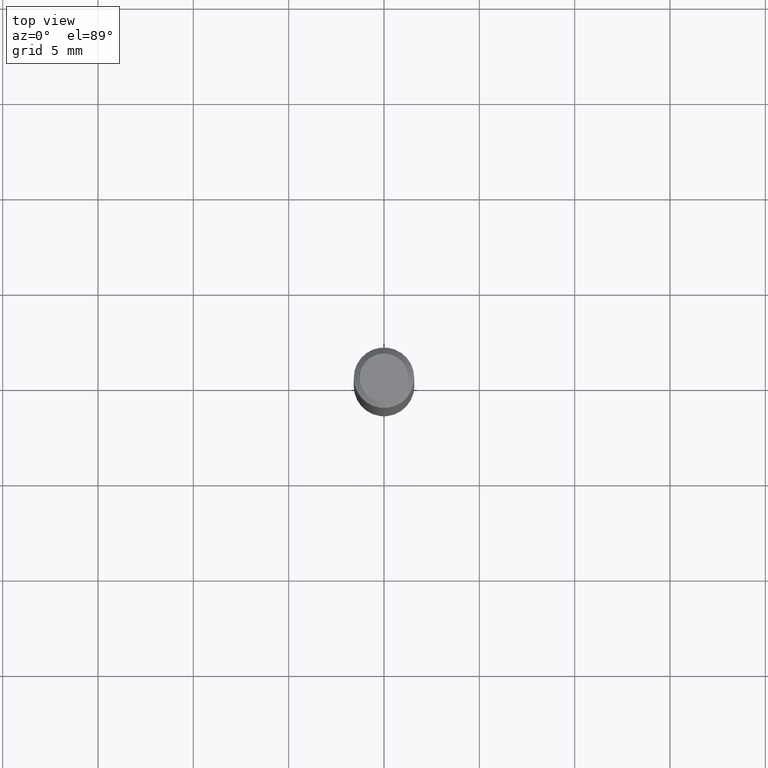
[diagram: clean part render]
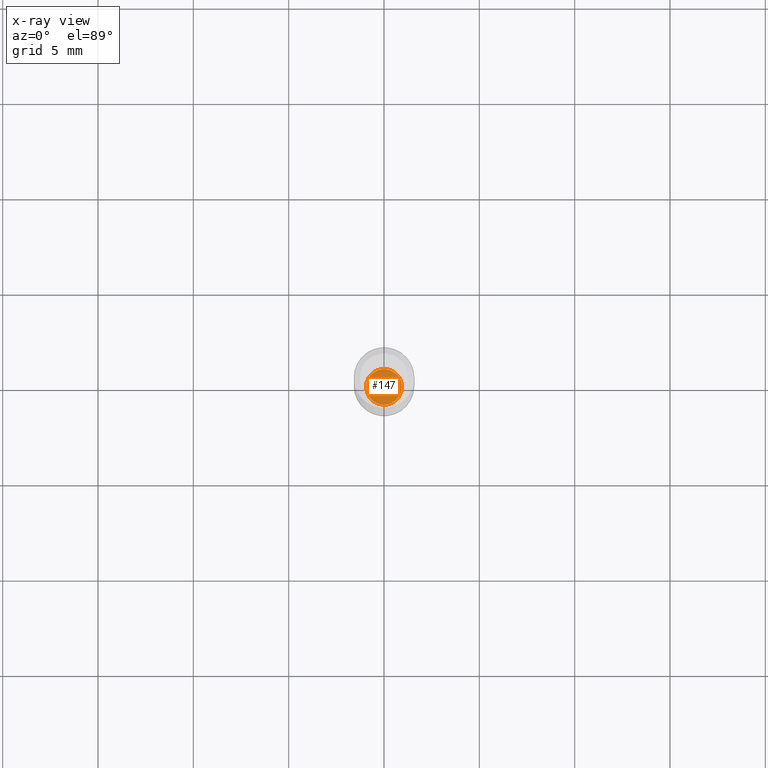
[diagram: x-ray — body ghosted, one internal face saturated and labeled with its STEP entity id]
A machine part, top view, then the same camera in x-ray: the body is ghosted and one INTERNAL B-rep face — a face not visible from any outside direction — is saturated and labeled: STEP entity #147.
In plain terms, the highlighted planar face has unit normal (-0, 0, 1).
Its self-contained STEP definition (entity closure, byte-faithful):
#3 = FACE_OUTER_BOUND ( 'NONE', #422, .T. ) ;
#7 = VERTEX_POINT ( 'NONE', #357 ) ;
#58 = CARTESIAN_POINT ( 'NONE',  ( 2.690015686803650369E-29, -3.840629472727460101E-15, -1.100000000000000089 ) ) ;
#85 = DIRECTION ( 'NONE',  ( -2.438088387897960049E-29, 3.491481338843145188E-15, 1.000000000000000000 ) ) ;
#88 = AXIS2_PLACEMENT_3D ( 'NONE', #58, #133, #468 ) ;
#115 = CIRCLE ( 'NONE', #214, 0.03690000000000000224 ) ;
#129 = VERTEX_POINT ( 'NONE', #392 ) ;
#133 = DIRECTION ( 'NONE',  ( -2.445468806185136597E-29, 3.491481338843145583E-15, 1.000000000000000000 ) ) ;
#147 = ADVANCED_FACE ( 'NONE', ( #3 ), #282, .F. ) ;
#172 = DIRECTION ( 'NONE',  ( 1.000000000000000000, -6.982962677686261189E-15, 0.000000000000000000 ) ) ;
#214 = AXIS2_PLACEMENT_3D ( 'NONE', #225, #403, #172 ) ;
#223 = CIRCLE ( 'NONE', #88, 0.03690000000000000224 ) ;
#225 = CARTESIAN_POINT ( 'NONE',  ( 2.690015686803650369E-29, -3.840629472727460101E-15, -1.100000000000000089 ) ) ;
#234 = ORIENTED_EDGE ( 'NONE', *, *, #430, .F. ) ;
#252 = ORIENTED_EDGE ( 'NONE', *, *, #253, .F. ) ;
#253 = EDGE_CURVE ( 'NONE', #129, #7, #115, .T. ) ;
#282 = PLANE ( 'NONE',  #283 ) ;
#283 = AXIS2_PLACEMENT_3D ( 'NONE', #429, #85, #391 ) ;
#357 = CARTESIAN_POINT ( 'NONE',  ( 0.03690000000000000224, -4.098300795534083495E-15, -1.100000000000000089 ) ) ;
#391 = DIRECTION ( 'NONE',  ( 1.000000000000000000, -6.982962677686265922E-15, 4.876176775795935793E-29 ) ) ;
#392 = CARTESIAN_POINT ( 'NONE',  ( -0.03690000000000000224, -3.575789976057872409E-15, -1.100000000000000089 ) ) ;
#403 = DIRECTION ( 'NONE',  ( -2.445468806185136597E-29, 3.491481338843145583E-15, 1.000000000000000000 ) ) ;
#422 = EDGE_LOOP ( 'NONE', ( #234, #252 ) ) ;
#429 = CARTESIAN_POINT ( 'NONE',  ( 2.690015686803650369E-29, -3.840629472727460101E-15, -1.100000000000000089 ) ) ;
#430 = EDGE_CURVE ( 'NONE', #7, #129, #223, .T. ) ;
#468 = DIRECTION ( 'NONE',  ( 1.000000000000000000, -6.982962677686261189E-15, 0.000000000000000000 ) ) ;